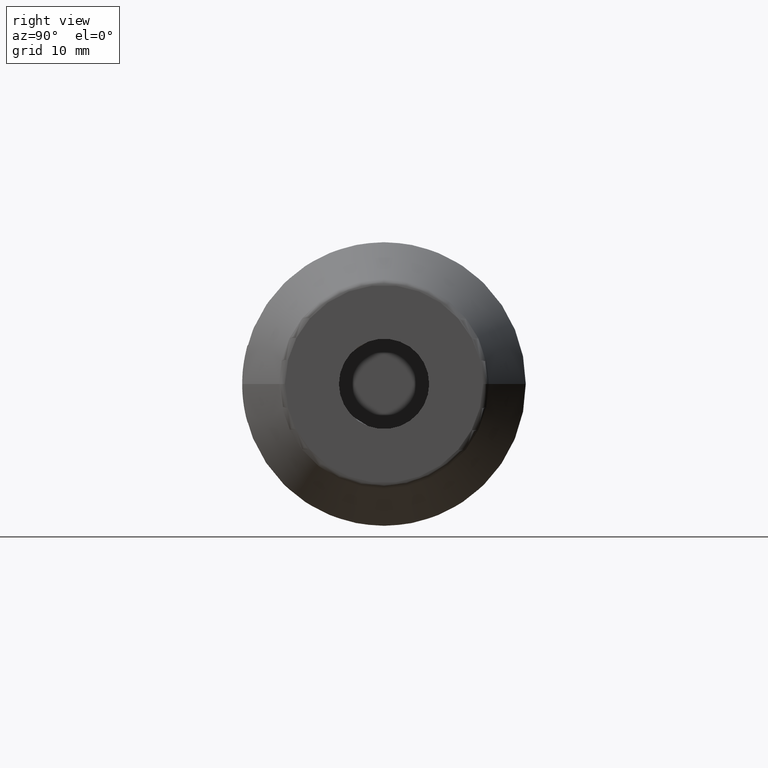
[diagram: clean part render]
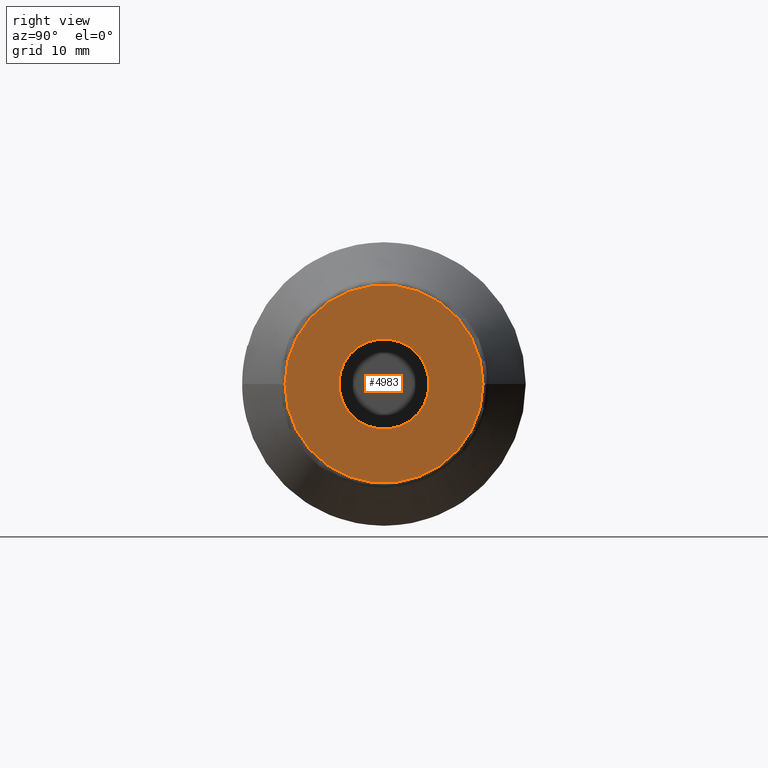
[diagram: same view with one face highlighted and labeled with its STEP entity id]
A machine part, right view. The second image highlights one B-rep face of the part: STEP entity #4983.
In plain terms, the highlighted planar face has unit normal (1, 0, 0).
Its self-contained STEP definition (entity closure, byte-faithful):
#1492=CARTESIAN_POINT('',(7.5E1,0.E0,0.E0));
#1493=DIRECTION('',(1.E0,0.E0,0.E0));
#1494=DIRECTION('',(0.E0,1.E0,0.E0));
#1495=AXIS2_PLACEMENT_3D('',#1492,#1493,#1494);
#1497=CARTESIAN_POINT('',(7.5E1,0.E0,0.E0));
#1498=DIRECTION('',(1.E0,0.E0,0.E0));
#1499=DIRECTION('',(0.E0,-1.E0,0.E0));
#1500=AXIS2_PLACEMENT_3D('',#1497,#1498,#1499);
#1502=CARTESIAN_POINT('',(7.5E1,0.E0,0.E0));
#1503=DIRECTION('',(-1.E0,0.E0,0.E0));
#1504=DIRECTION('',(0.E0,1.E0,0.E0));
#1505=AXIS2_PLACEMENT_3D('',#1502,#1503,#1504);
#1507=CARTESIAN_POINT('',(7.5E1,0.E0,0.E0));
#1508=DIRECTION('',(-1.E0,0.E0,0.E0));
#1509=DIRECTION('',(0.E0,-1.E0,0.E0));
#1510=AXIS2_PLACEMENT_3D('',#1507,#1508,#1509);
#3373=CARTESIAN_POINT('',(7.5E1,7.E0,0.E0));
#3374=VERTEX_POINT('',#3373);
#3383=CARTESIAN_POINT('',(7.5E1,-7.E0,0.E0));
#3384=VERTEX_POINT('',#3383);
#3389=CARTESIAN_POINT('',(7.5E1,1.536292973919E1,-1.397091051141E-14));
#3390=CARTESIAN_POINT('',(7.5E1,-1.536292973919E1,1.208949423835E-14));
#3391=VERTEX_POINT('',#3389);
#3392=VERTEX_POINT('',#3390);
#4968=CARTESIAN_POINT('',(7.5E1,0.E0,0.E0));
#4969=DIRECTION('',(1.E0,0.E0,0.E0));
#4970=DIRECTION('',(0.E0,-1.E0,0.E0));
#4971=AXIS2_PLACEMENT_3D('',#4968,#4969,#4970);
#4972=PLANE('',#4971);
#4973=ORIENTED_EDGE('',*,*,#4935,.T.);
#4974=ORIENTED_EDGE('',*,*,#4950,.T.);
#4975=EDGE_LOOP('',(#4973,#4974));
#4976=FACE_OUTER_BOUND('',#4975,.F.);
#4978=ORIENTED_EDGE('',*,*,#4977,.T.);
#4980=ORIENTED_EDGE('',*,*,#4979,.T.);
#4981=EDGE_LOOP('',(#4978,#4980));
#4982=FACE_BOUND('',#4981,.F.);
#4983=ADVANCED_FACE('',(#4976,#4982),#4972,.T.);
#1496=CIRCLE('',#1495,7.E0);
#1501=CIRCLE('',#1500,7.E0);
#1506=CIRCLE('',#1505,1.536292973919E1);
#1511=CIRCLE('',#1510,1.536292973919E1);
#4935=EDGE_CURVE('',#3391,#3392,#1506,.T.);
#4950=EDGE_CURVE('',#3392,#3391,#1511,.T.);
#4977=EDGE_CURVE('',#3374,#3384,#1496,.T.);
#4979=EDGE_CURVE('',#3384,#3374,#1501,.T.);